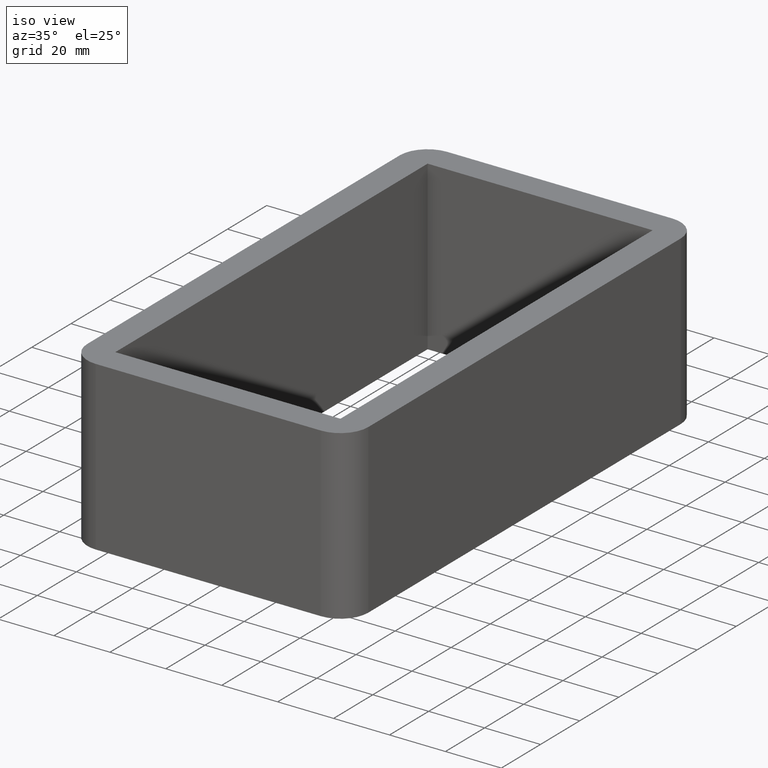
[diagram: clean part render]
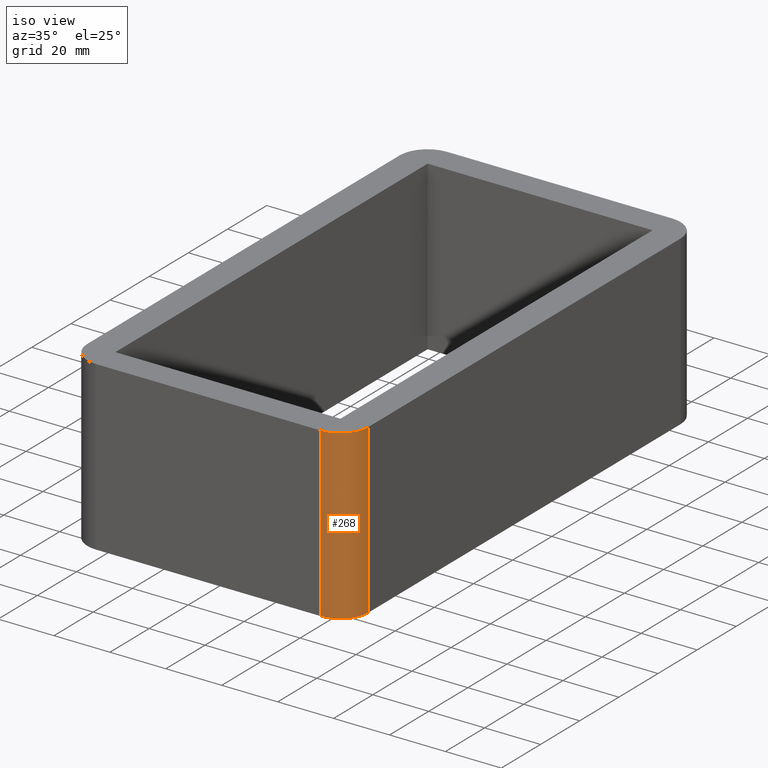
[diagram: same view with one face highlighted and labeled with its STEP entity id]
A machine part, iso view. The second image highlights one B-rep face of the part: STEP entity #268.
In plain terms, the highlighted cylindrical surface (edge-blend (fillet) strip) has radius 10 mm, axis along (0, 0, -1).
Its self-contained STEP definition (entity closure, byte-faithful):
#19=CIRCLE('',#300,10.);
#24=CIRCLE('',#310,10.);
#28=CYLINDRICAL_SURFACE('',#309,10.);
#40=FACE_OUTER_BOUND('',#55,.T.);
#55=EDGE_LOOP('',(#227,#228,#229,#230));
#83=LINE('',#453,#111);
#85=LINE('',#457,#113);
#111=VECTOR('',#375,10.);
#113=VECTOR('',#379,10.);
#129=VERTEX_POINT('',#428);
#130=VERTEX_POINT('',#430);
#137=VERTEX_POINT('',#452);
#138=VERTEX_POINT('',#456);
#159=EDGE_CURVE('',#130,#129,#19,.T.);
#170=EDGE_CURVE('',#137,#130,#83,.T.);
#172=EDGE_CURVE('',#129,#138,#85,.T.);
#173=EDGE_CURVE('',#138,#137,#24,.T.);
#227=ORIENTED_EDGE('',*,*,#159,.T.);
#228=ORIENTED_EDGE('',*,*,#172,.T.);
#229=ORIENTED_EDGE('',*,*,#173,.T.);
#230=ORIENTED_EDGE('',*,*,#170,.T.);
#268=ADVANCED_FACE('',(#40),#28,.T.);
#300=AXIS2_PLACEMENT_3D('',#431,#351,#352);
#309=AXIS2_PLACEMENT_3D('',#455,#377,#378);
#310=AXIS2_PLACEMENT_3D('',#458,#380,#381);
#351=DIRECTION('center_axis',(0.,0.,1.));
#352=DIRECTION('ref_axis',(0.707106781186547,-0.707106781186547,0.));
#375=DIRECTION('',(0.,0.,-1.));
#377=DIRECTION('center_axis',(0.,0.,-1.));
#378=DIRECTION('ref_axis',(0.707106781186547,-0.707106781186547,0.));
#379=DIRECTION('',(0.,0.,1.));
#380=DIRECTION('center_axis',(0.,0.,-1.));
#381=DIRECTION('ref_axis',(0.707106781186547,-0.707106781186547,0.));
#428=CARTESIAN_POINT('',(50.2500000000001,-79.7499999999999,-60.));
#430=CARTESIAN_POINT('',(40.2500000000001,-89.7499999999999,-60.));
#431=CARTESIAN_POINT('Origin',(40.2500000000001,-79.7499999999999,-60.));
#452=CARTESIAN_POINT('',(40.2500000000001,-89.7499999999999,0.));
#453=CARTESIAN_POINT('',(40.2500000000001,-89.7499999999999,0.));
#455=CARTESIAN_POINT('Origin',(40.2500000000001,-79.7499999999999,0.));
#456=CARTESIAN_POINT('',(50.2500000000001,-79.7499999999999,0.));
#457=CARTESIAN_POINT('',(50.2500000000001,-79.7499999999999,0.));
#458=CARTESIAN_POINT('Origin',(40.2500000000001,-79.7499999999999,0.));